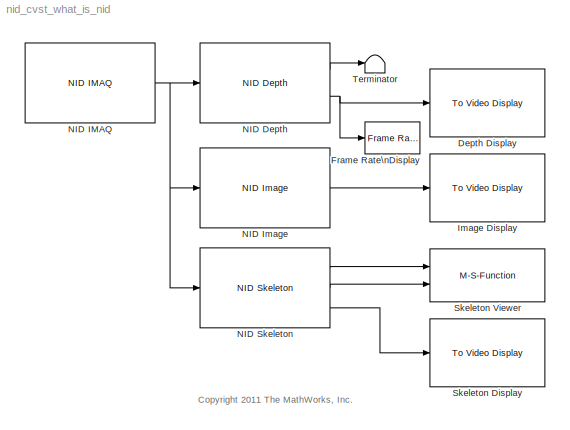
MODEL nid_cvst_what_is_nid
KIND model
BLOCK [Reference] Depth Display  REF=vipsnks/To Video Display
  DialogControllerArgs = DataTag0
  OutputDevice = On-screen video monitor
  Ports = [1]
  SID = 118
  SourceBlock = vipsnks/To Video Display
  SourceType = To Video Display
  dataOrg = Column-major
  fullScreen = off
  imagePorts = One multidimensional signal
  inputType = Obsolete
  isWindowOpen = on
  openAtMdlStart = on
  saveWindowSize = on
  videoWindowHeight = 292
  videoWindowWidth = 377
  videoWindowX = 1124
  videoWindowY = 369
BLOCK [Reference] Frame Rate\nDisplay  REF=vipsnks/Frame Rate\nDisplay
  DialogController = vipDDGCreate
  DialogControllerArgs = DataTag1
  Ports = [1]
  SID = 115
  SourceBlock = vipsnks/Frame Rate\nDisplay
  SourceType = Frame Rate Display
  UpdateRate = 10
BLOCK [Reference] Image Display  REF=vipsnks/To Video Display
  DialogControllerArgs = DataTag2
  OutputDevice = On-screen video monitor
  Ports = [1]
  SID = 121
  SourceBlock = vipsnks/To Video Display
  SourceType = To Video Display
  dataOrg = Column-major
  fullScreen = off
  imagePorts = One multidimensional signal
  inputType = Obsolete
  isWindowOpen = on
  openAtMdlStart = on
  saveWindowSize = on
  videoWindowHeight = 292
  videoWindowWidth = 377
  videoWindowX = 1124
  videoWindowY = 24
BLOCK [Reference] NID Depth  REF=nid_lib/NID Depth
  Ports = [1, 2]
  SID = 117
  SourceBlock = nid_lib/NID Depth
  SourceType = NID Depth
  conv_XYZ_RW = off
  depthOutput = Depth
  viewer = on
BLOCK [Reference] NID IMAQ  REF=nid_lib/NID IMAQ
  Ports = [0, 1]
  SID = 84
  SourceBlock = nid_lib/NID IMAQ
  SourceType = NID IMAQ
  angle = 0
  angle_read = off
  imaq_depth = on
  imaq_image = on
  imaq_ir = off
  imaq_motion = off
  imaq_sample_time = 1/30
  imaq_skeleton = on
  mirror_image = off
  near_mode = off
  needPsiPose = off
  res_fps = VGA (640x480): 30 FPS
  view_point = on
BLOCK [Reference] NID Image  REF=nid_lib/NID Image
  Ports = [1, 1]
  SID = 120
  SourceBlock = nid_lib/NID Image
  SourceType = NID Image
  imageOutput = RGB
BLOCK [Reference] NID Skeleton  REF=nid_lib/NID Skeleton
  Ports = [1, 3]
  SID = 85
  SourceBlock = nid_lib/NID Skeleton
  SourceType = NID Skeleton
  conv_XYZ_RW = on
  num_of_skeleton_tracking = 1
  viewer = on
BLOCK [Reference] Skeleton Display  REF=vipsnks/To Video Display
  DialogControllerArgs = DataTag3
  OutputDevice = On-screen video monitor
  Ports = [1]
  SID = 116
  SourceBlock = vipsnks/To Video Display
  SourceType = To Video Display
  dataOrg = Column-major
  fullScreen = off
  imagePorts = One multidimensional signal
  inputType = Obsolete
  isWindowOpen = on
  openAtMdlStart = on
  saveWindowSize = on
  videoWindowHeight = 292
  videoWindowWidth = 377
  videoWindowX = 172
  videoWindowY = 25
BLOCK [M-S-Function] Skeleton Viewer
  FunctionName = skeleton_viewer
  MaskDisplay = disp('Skeleton\\nViewer')\n\nport_label('input', 1, 'Tracking')\nport_label('input', 2, 'Skeleton')\n\n
  MaskIconFrame = on
  MaskIconOpaque = on
  MaskIconRotate = none
  MaskIconUnits = autoscale
  MaskPortRotate = default
  Ports = [2]
  SID = 110
BLOCK [Terminator] Terminator
  SID = 119
ANNOTATION (root): <copyright redacted>
LINE NID Depth:1 -> Terminator:1
NET NID Depth:2 -> Depth Display:1, Frame Rate\nDisplay:1
NET NID IMAQ:1 -> NID Depth:1, NID Image:1, NID Skeleton:1
LINE NID Image:1 -> Image Display:1
LINE NID Skeleton:1 -> Skeleton Viewer:1
LINE NID Skeleton:2 -> Skeleton Viewer:2
LINE NID Skeleton:3 -> Skeleton Display:1
note: NET lines group one-source signal fan-out (src -> all destinations, sorted); 1:1 wires keep LINE
